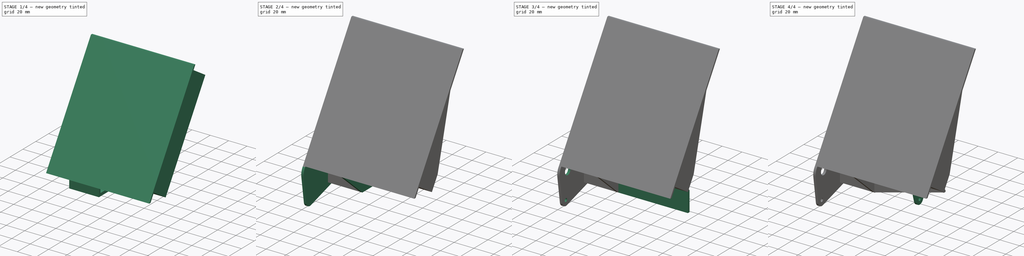
[diagram: build sequence overview — one tinted view per stage of 4, left to right]
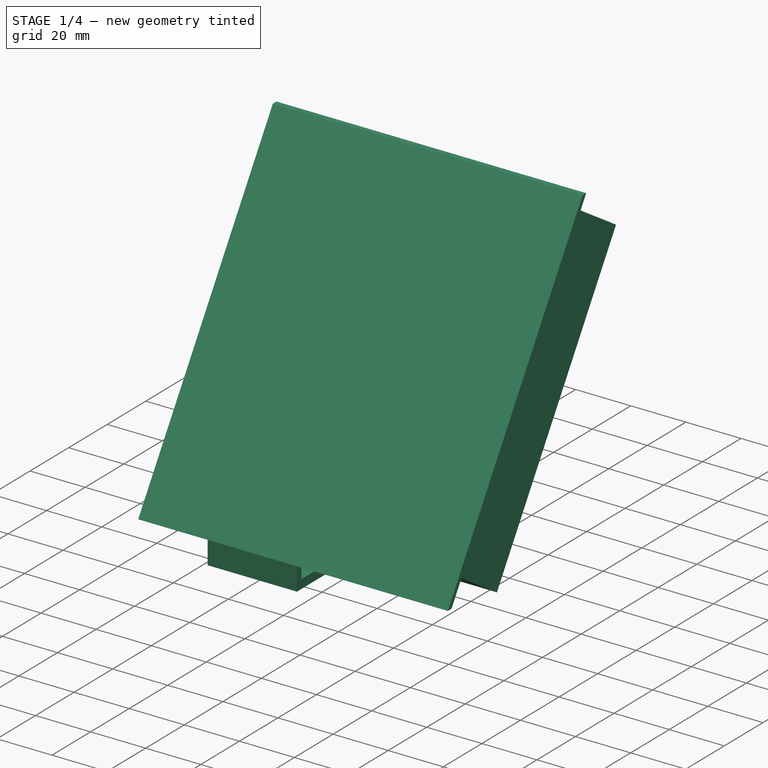
[diagram: stage 1 of 4 — iso view after this stage's code; geometry added in this stage tinted green]
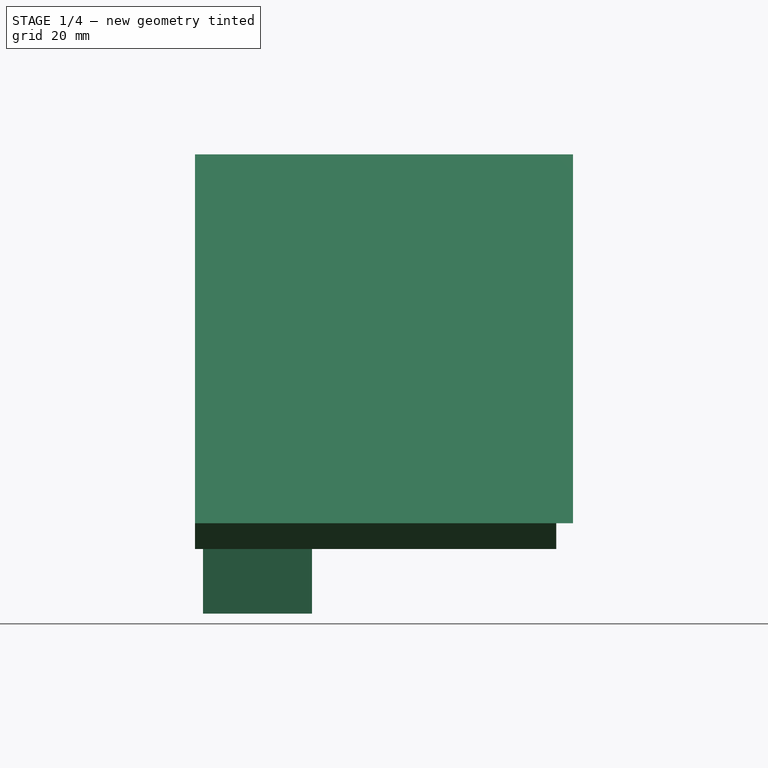
[diagram: stage 1 of 4 — front view after this stage's code; geometry added in this stage tinted green]
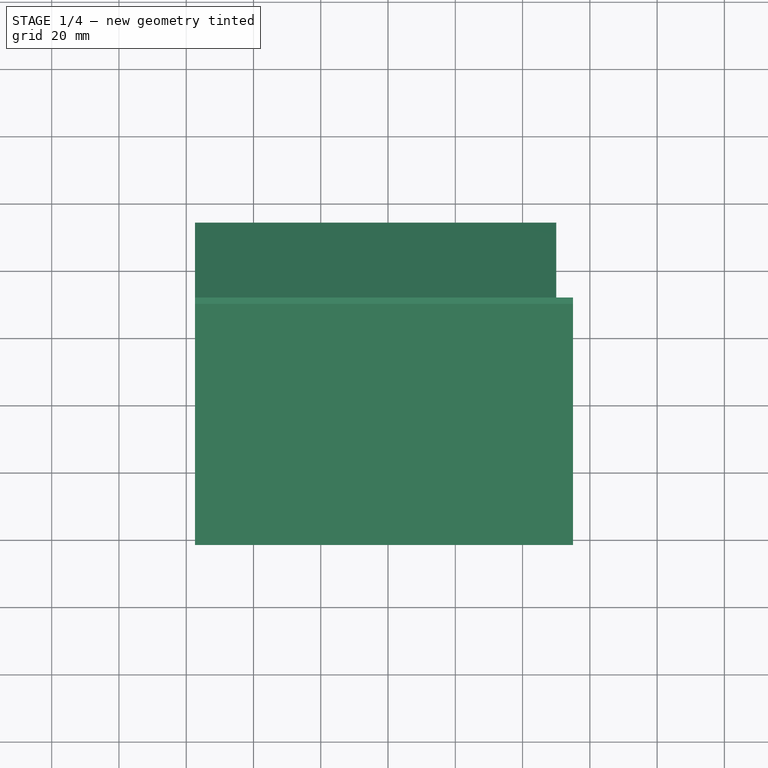
[diagram: stage 1 of 4 — top view after this stage's code; geometry added in this stage tinted green]
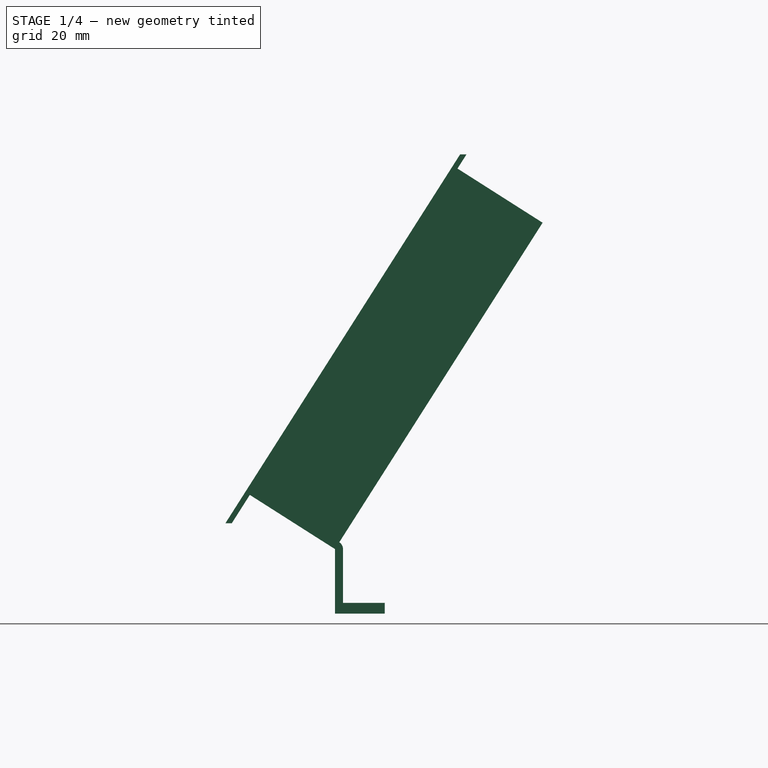
[diagram: stage 1 of 4 — right view after this stage's code; geometry added in this stage tinted green]
FCSTD DOCUMENT  (FreeCAD 0.19R24291 (Git))
Label: Hopper7
License: All rights reserved
LicenseURL: http://en.wikipedia.org/wiki/All_rights_reserved
objects: Sketcher::SketchObject×11, PartDesign::Pad×7, PartDesign::Pocket×4, Spreadsheet::Sheet×1, PartDesign::Plane×1, PartDesign::Body×1
note: 35 computed .brp shape members not serialized (recipe doc carries the construction recipe); baked Part::Feature solids carry a one-line shape summary decoded from their .brp

FEATURE [Sketcher::SketchObject] Sketch
  AttachmentOffset = pos=(0,0,0) rot=(1,0,0;1.00409rad)
  FullyConstrained = true
  MapMode = 5
  Placement = pos=(0,0,0) rot=(1,0,0;1.00409rad)
  Support = -> [XY_Plane]
  expr: Constraints[6] = Spreadsheet.length
  expr: Constraints[13] = Spreadsheet.width / 2 + Spreadsheet.stiffening_rib_width
  expr: Constraints[7] = Spreadsheet.width / 2
  expr: .AttachmentOffset.Rotation.Angle = 90 - Spreadsheet.inclination
  sketch-geometry (5):
    g0: LineSegment StartX=0 StartY=0 StartZ=0 EndX=55 EndY=0 EndZ=0
    g1: LineSegment StartX=55 StartY=0 StartZ=0 EndX=55 EndY=130 EndZ=0
    g2: LineSegment StartX=55 StartY=130 StartZ=0 EndX=-57.4 EndY=130 EndZ=0
    g3: LineSegment StartX=0 StartY=0 StartZ=0 EndX=-57.4 EndY=0 EndZ=0
    g4: LineSegment StartX=-57.4 StartY=0 StartZ=0 EndX=-57.4 EndY=130 EndZ=0
  constraints (14):
    c: Coincident(g0,g1)
    c: Coincident(g1,g2)
    c: Horizontal(g0)
    c: Horizontal(g2)
    c: Vertical(g1)
    c: Coincident(g0,g-1)
    c: Distance(g1) = 130
    c: Distance(g0) = 55
    c: Coincident(g3,g0)
    c: PointOnObject(g3,g-1)
    c: Coincident(g4,g3)
    c: Coincident(g4,g2)
    c: Vertical(g4)
    c: Distance(g3) = 57.4
FEATURE [Spreadsheet::Sheet] Spreadsheet
  cells = B2(inclination)=32.47; D2(stiffening_rib_max_length)=30; F2(fulcrum_x_offset)=; H2(fastener_platform_width)==15 + 6.4 + 5.5 * 2; B3(width)=110; F3(fulcrum_y_offset)=; B4(length)=130; B5(stiffening_rib_width)=2.4
FEATURE [PartDesign::Pad] Pad  label="Основа"
  Direction = (0,-1,0)
  Length = 1.6
  Length2 = 100
  Profile = -> Sketch
  Type = 0
  UseCustomVector = true
FEATURE [PartDesign::Plane] DatumPlane
  AttachmentOffset = pos=(0,0,0) rot=(1,0,0;1.00409rad)
  Length = 61.7496
  MapMode = 2
  Placement = pos=(0,0,0) rot=(1,0,0;1.00409rad)
  ResizeMode = 0
  Support = -> [X_Axis]
  Width = 80.7761
  expr: .AttachmentOffset.Rotation.Roll = 90 - Spreadsheet.inclination
FEATURE [Sketcher::SketchObject] Sketch001
  FullyConstrained = false
  MapMode = 5
  Placement = pos=(0,0,0) rot=(0,0.876601,0.481218;3.14159rad)
  Support = -> [DatumPlane]
  expr: Constraints[47] = Spreadsheet.fastener_platform_width
  expr: Constraints[46] = Spreadsheet.width / 2 + Spreadsheet.stiffening_rib_width
  expr: Constraints[45] = Spreadsheet.length - 5
  expr: Constraints[44] = Spreadsheet.width / 2 - 5
  expr: Constraints[41] = Spreadsheet.stiffening_rib_width
  sketch-geometry (17):
    g0: LineSegment StartX=57.4 StartY=10 StartZ=0 EndX=-50 EndY=10 EndZ=0
    g1: LineSegment StartX=-47.6 StartY=12.4 StartZ=0 EndX=19.4439 EndY=12.4 EndZ=0
    g2: LineSegment StartX=-47.6 StartY=12.4 StartZ=0 EndX=-47.6 EndY=90.9044 EndZ=0
    g3: LineSegment StartX=-50 StartY=125 StartZ=0 EndX=-50 EndY=10 EndZ=0
    g4: LineSegment StartX=-50 StartY=125 StartZ=0 EndX=57.4 EndY=125 EndZ=0
    g5: LineSegment StartX=55 StartY=122.6 StartZ=0 EndX=-47.6 EndY=122.6 EndZ=0
    g6: LineSegment StartX=55 StartY=122.6 StartZ=0 EndX=55 EndY=12.4 EndZ=0
    g7: LineSegment StartX=57.4 StartY=10 StartZ=0 EndX=57.4 EndY=125 EndZ=0
    g8: LineSegment StartX=19.4439 StartY=12.4 StartZ=0 EndX=-47.6 EndY=90.9044 EndZ=0
    g9: LineSegment StartX=22.6 StartY=12.4 StartZ=0 EndX=-47.6 EndY=94.6 EndZ=0
    g10: LineSegment StartX=22.6 StartY=12.4 StartZ=0 EndX=55 EndY=12.4 EndZ=0
    g11: LineSegment StartX=-47.6 StartY=94.6 StartZ=0 EndX=-47.6 EndY=122.6 EndZ=0
    g12: LineSegment StartX=8.67844 StartY=12.4 StartZ=0 EndX=8.67844 EndY=10 EndZ=0
    g13: LineSegment StartX=-47.6 StartY=53.1117 StartZ=0 EndX=-50 EndY=53.1117 EndZ=0
    g14: LineSegment StartX=55 StartY=42.5219 StartZ=0 EndX=57.4 EndY=42.5219 EndZ=0
    g15: LineSegment StartX=3.18141 StartY=122.6 StartZ=0 EndX=3.18141 EndY=125 EndZ=0
    g16: LineSegment StartX=-17.7711 StartY=55.9765 StartZ=0 EndX=-15.9461 EndY=57.5351 EndZ=0
  constraints (49):
    c: Horizontal(g0)
    c: Horizontal(g1)
    c: Vertical(g2)
    c: Vertical(g3)
    c: Horizontal(g4)
    c: Horizontal(g5)
    c: Vertical(g6)
    c: Vertical(g7)
    c: Coincident(g1,g2)
    c: Coincident(g10,g6)
    c: Coincident(g5,g6)
    c: Coincident(g0,g7)
    c: Coincident(g7,g4)
    c: Coincident(g11,g5)
    c: Coincident(g4,g3)
    c: Coincident(g3,g0)
    c: Coincident(g1,g8)
    c: Coincident(g10,g9)
    c: Tangent(g1,g10)
    c: Coincident(g2,g8)
    c: Coincident(g11,g9)
    c: Tangent(g2,g11)
    c: Parallel(g8,g9)
    c: PointOnObject(g12,g1)
    c: PointOnObject(g12,g0)
    c: Vertical(g12)
    c: PointOnObject(g13,g2)
    c: PointOnObject(g13,g3)
    c: Horizontal(g13)
    c: PointOnObject(g14,g6)
    c: PointOnObject(g14,g7)
    c: Horizontal(g14)
    c: PointOnObject(g15,g5)
    c: PointOnObject(g15,g4)
    c: Vertical(g15)
    c: PointOnObject(g16,g8)
    c: PointOnObject(g16,g9)
    c: Perpendicular(g9,g16)
    c: Equal(g12,g13)
    c: Equal(g13,g15)
    c: Equal(g15,g14)
    c: Distance(g16) = 2.4
    c: Equal(g16,g12)
    c: Distance(g-1,g0) = 10
    c: Distance(g0,g-2) = 50
    c: Distance(g-1,g4) = 125
    c: Distance(g0,g-2) = 57.4
    c: Distance(g10) = 32.4
    c: Distance(g11) = 28
FEATURE [PartDesign::Pad] Pad001  label="Усилители"
  BaseFeature = -> Pad
  Direction = (1,1,1)
  Length = 30
  Length2 = 100
  Profile = -> Sketch001
  Type = 0
  expr: Length = Spreadsheet.stiffening_rib_max_length
FEATURE [Sketcher::SketchObject] Sketch002
  AttachmentOffset = pos=(0,0,55) rot=(0,0,1;0.566708rad)
  FullyConstrained = true
  MapMode = 5
  Placement = pos=(-55,1.22e-14,-1.22e-14) rot=(-0.433623,0.7899,0.433623;4.4787rad)
  Support = -> [YZ_Plane]
  expr: Constraints[11] = 90 - Spreadsheet.inclination
  expr: .AttachmentOffset.Base.z = Spreadsheet.width / 2
  expr: .AttachmentOffset.Rotation.Angle = Spreadsheet.inclination
  sketch-geometry (10):
    g0: Circle CenterX=-10.084 CenterY=-2.2411 CenterZ=0 NormalX=0 NormalY=0 NormalZ=1 AngleXU=0 Radius=4
    g1: LineSegment StartX=0 StartY=0 StartZ=0 EndX=-6.16253 EndY=3.92143 EndZ=0
    g2: LineSegment StartX=-6.16253 StartY=3.92143 StartZ=0 EndX=-10.084 EndY=-2.2411 EndZ=0
    g3: LineSegment StartX=0 StartY=0 StartZ=0 EndX=-3.92143 EndY=-6.16253 EndZ=0
    g4: LineSegment StartX=-3.92143 StartY=-6.16253 StartZ=0 EndX=-10.084 EndY=-2.2411 EndZ=0
    g5: LineSegment StartX=-10.084 StartY=-2.2411 StartZ=0 EndX=-21.684 EndY=-2.2411 EndZ=0
    g6: LineSegment StartX=-21.684 StartY=-25.4411 StartZ=0 EndX=-21.684 EndY=-2.2411 EndZ=0
    g7: LineSegment StartX=-21.684 StartY=-2.2411 StartZ=0 EndX=-21.684 EndY=20.9589 EndZ=0
    g8: Circle CenterX=-21.684 CenterY=20.9589 CenterZ=0 NormalX=0 NormalY=0 NormalZ=1 AngleXU=0 Radius=1.7
    g9: Circle CenterX=-21.684 CenterY=-25.4411 CenterZ=0 NormalX=0 NormalY=0 NormalZ=1 AngleXU=0 Radius=1.7
  constraints (26):
    c: Distance(g0,g-1) = 10.33
    c: Coincident(g1,g-1)
    c: Coincident(g2,g1)
    c: Coincident(g2,g0)
    c: Coincident(g3,g-1)
    c: Coincident(g4,g3)
    c: Coincident(g4,g0)
    c: Perpendicular(g1,g3)
    c: Perpendicular(g2,g1)
    c: Perpendicular(g2,g4)
    c: Equal(g4,g3)
    c: Angle(g-2,g1) = 1.00409
    c: Diameter(g0) = 8
    c: Coincident(g5,g0)
    c: Coincident(g6,g5)
    c: Coincident(g7,g5)
    c: Perpendicular(g6,g5)
    c: Perpendicular(g7,g5)
    c: Equal(g6,g7)
    c: Distance(g5) = 11.6
    c: Distance(g6,g7) = 46.4
    c: Coincident(g8,g7)
    c: Coincident(g9,g6)
    c: Equal(g9,g8)
    c: Diameter(g9) = 3.4
    c: Horizontal(g5)
FEATURE [Sketcher::SketchObject] Sketch003
  AttachmentOffset = pos=(0,0,-55) rot=(0,0,1;0rad)
  FullyConstrained = true
  MapMode = 5
  Placement = pos=(-55,1.22e-14,-1.22e-14) rot=(0.57735,0.57735,0.57735;2.0944rad)
  Support = -> [YZ_Plane]
  expr: .AttachmentOffset.Base.z = -Spreadsheet.width / 2
  expr: Constraints[13] = Spreadsheet.stiffening_rib_width
  expr: Constraints[5] = Spreadsheet.stiffening_rib_max_length
  expr: Constraints[3] = Spreadsheet.inclination
  sketch-geometry (9):
    g0: LineSegment StartX=0 StartY=0 StartZ=0 EndX=5.36858 EndY=8.43673 EndZ=0
    g1: LineSegment StartX=5.36858 StartY=8.43673 StartZ=0 EndX=30.6788 EndY=-7.66901 EndZ=0
    g2: LineSegment StartX=30.6788 StartY=-7.66901 StartZ=0 EndX=31.9672 EndY=-5.6442 EndZ=0
    g3: ArcOfCircle CenterX=30.6788 CenterY=-7.66901 CenterZ=0 NormalX=0 NormalY=0 NormalZ=1 AngleXU=0 Radius=2.4 StartAngle=6.28318 EndAngle=7.28727
    g4: LineSegment StartX=33.0788 StartY=-7.66902 StartZ=0 EndX=33.0788 EndY=-23.669 EndZ=0
    g5: LineSegment StartX=30.6788 StartY=-7.66901 StartZ=0 EndX=30.6788 EndY=-26.869 EndZ=0
    g6: LineSegment StartX=30.6788 StartY=-26.869 StartZ=0 EndX=45.4788 EndY=-26.869 EndZ=0
    g7: LineSegment StartX=45.4788 StartY=-26.869 StartZ=0 EndX=45.4788 EndY=-23.669 EndZ=0
    g8: LineSegment StartX=33.0788 StartY=-23.669 StartZ=0 EndX=45.4788 EndY=-23.669 EndZ=0
  constraints (26):
    c: Coincident(g0,g-1)
    c: Distance(g0) = 10
    c: Coincident(g1,g0)
    c: Angle(g0,g-2) = 0.566708
    c: Perpendicular(g0,g1)
    c: Distance(g1) = 30
    c: Coincident(g2,g1)
    c: Coincident(g3,g2)
    c: Coincident(g3,g2)
    c: Coincident(g4,g3)
    c: Vertical(g4)
    c: Tangent(g3,g4)
    c: Perpendicular(g1,g2)
    c: Distance(g2) = 2.4
    c: Coincident(g5,g2)
    c: Vertical(g5)
    c: Coincident(g6,g5)
    c: Horizontal(g6)
    c: Coincident(g7,g6)
    c: Vertical(g7)
    c: Coincident(g8,g4)
    c: Coincident(g8,g7)
    c: Horizontal(g8)
    c: Distance(g7) = 3.2
    c: Distance(g4) = 16
    c: Distance(g8) = 12.4
FEATURE [PartDesign::Pad] Pad002  label="Платформа"
  BaseFeature = -> Pad001
  Direction = (1,1,1)
  Length = 32.4
  Length2 = 100
  Profile = -> Sketch003
  Type = 0
  expr: Length = Spreadsheet.fastener_platform_width
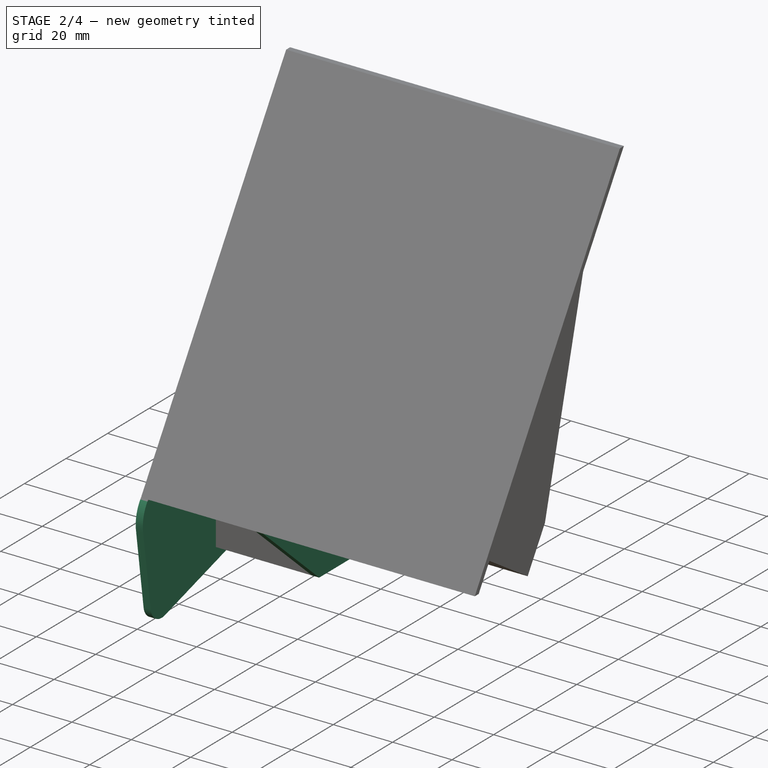
[diagram: stage 2 of 4 — iso view after this stage's code; geometry added in this stage tinted green]
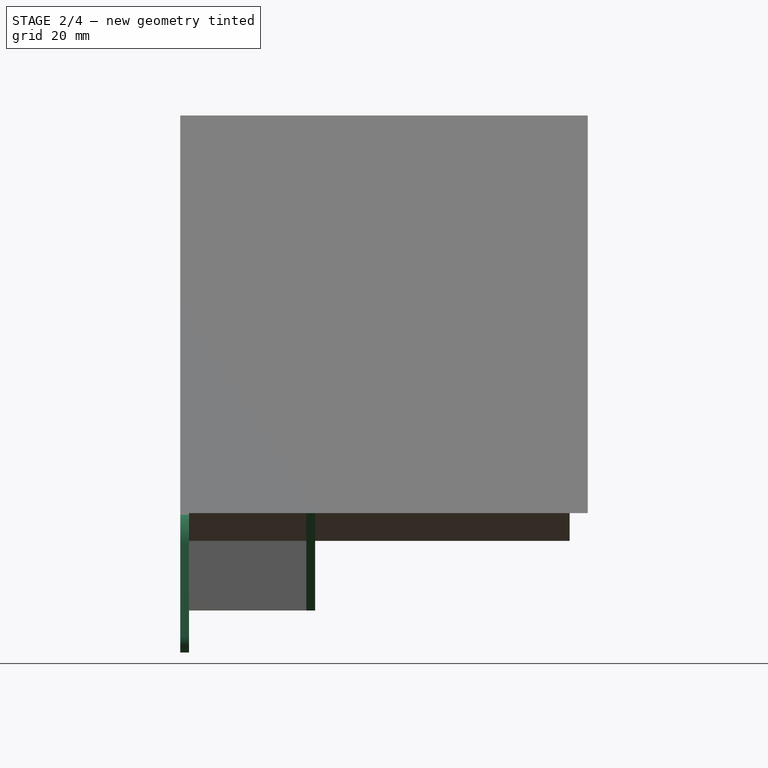
[diagram: stage 2 of 4 — front view after this stage's code; geometry added in this stage tinted green]
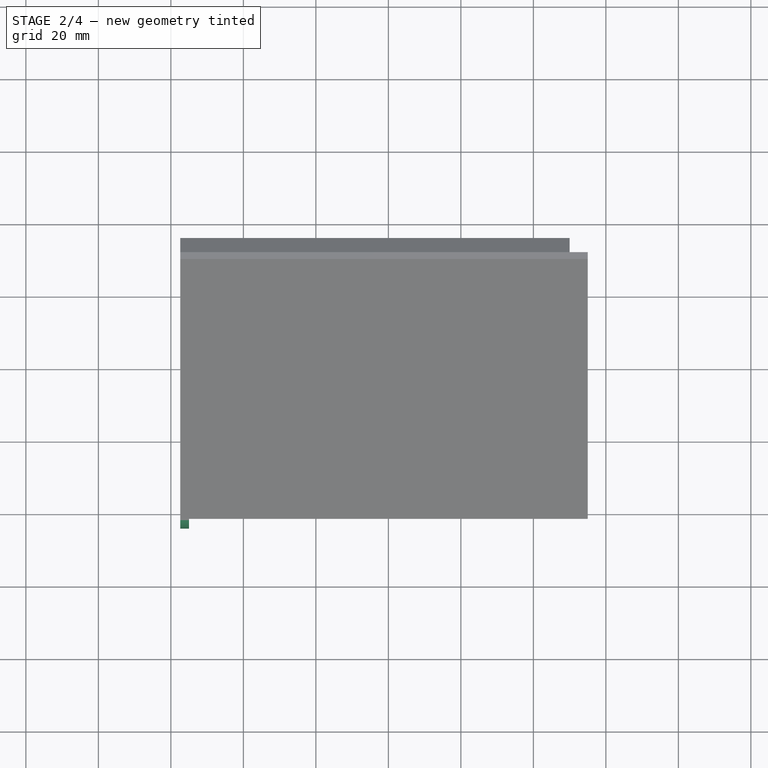
[diagram: stage 2 of 4 — top view after this stage's code; geometry added in this stage tinted green]
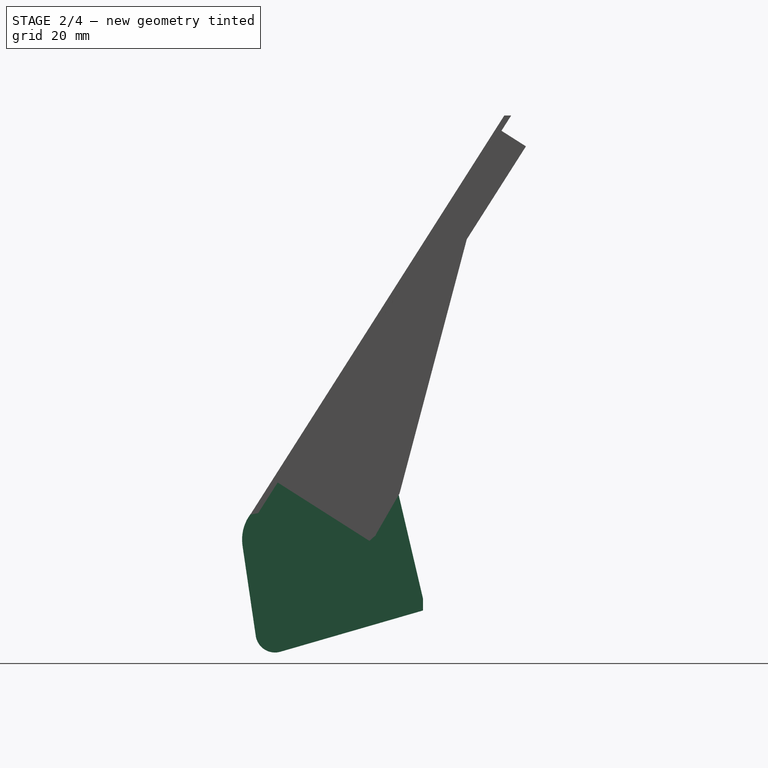
[diagram: stage 2 of 4 — right view after this stage's code; geometry added in this stage tinted green]
FEATURE [Sketcher::SketchObject] Sketch004
  AttachmentOffset = pos=(0,0,-22.6) rot=(0,0,1;0rad)
  FullyConstrained = true
  MapMode = 5
  Placement = pos=(-22.6,5e-15,-5e-15) rot=(0.57735,0.57735,0.57735;2.0944rad)
  Support = -> [YZ_Plane]
  expr: Constraints[25] = Sketch003.Constraints[25]
  expr: Constraints[24] = Sketch003.Constraints[24]
  expr: Constraints[23] = Sketch003.Constraints[23]
  expr: .AttachmentOffset.Base.z = -Spreadsheet.width / 2 + Spreadsheet.fastener_platform_width
  expr: Constraints[13] = Sketch003.Constraints[13]
  expr: Constraints[5] = Sketch003.Constraints[5]
  expr: Constraints[3] = Sketch003.Constraints[3]
  expr: Constraints[1] = Sketch003.Constraints[1]
  sketch-geometry (14):
    g0: LineSegment StartX=0 StartY=0 StartZ=0 EndX=5.36858 EndY=8.43673 EndZ=0
    g1: LineSegment StartX=5.36858 StartY=8.43673 StartZ=0 EndX=30.6788 EndY=-7.66901 EndZ=0
    g2: LineSegment StartX=30.6788 StartY=-7.66901 StartZ=0 EndX=31.9672 EndY=-5.6442 EndZ=0
    g3: ArcOfCircle CenterX=30.6788 CenterY=-7.66901 CenterZ=0 NormalX=0 NormalY=0 NormalZ=1 AngleXU=0 Radius=2.4 StartAngle=9.56287e-08 EndAngle=1.00409
    g4: LineSegment StartX=33.0788 StartY=-7.66901 StartZ=0 EndX=33.0788 EndY=-23.669 EndZ=0
    g5: LineSegment StartX=30.6788 StartY=-7.66901 StartZ=0 EndX=30.6788 EndY=-26.869 EndZ=0
    g6: LineSegment StartX=30.6788 StartY=-26.869 StartZ=0 EndX=45.4788 EndY=-26.869 EndZ=0
    g7: LineSegment StartX=45.4788 StartY=-26.869 StartZ=0 EndX=45.4788 EndY=-23.669 EndZ=0
    g8: LineSegment StartX=33.0788 StartY=-23.669 StartZ=0 EndX=45.4788 EndY=-23.669 EndZ=0
    g9: LineSegment StartX=45.4788 StartY=-23.669 StartZ=0 EndX=45.4788 EndY=-26.869 EndZ=0
    g10: LineSegment StartX=45.4788 StartY=-23.669 StartZ=0 EndX=32.6093 EndY=-6.24324 EndZ=0
    g11: LineSegment StartX=45.4788 StartY=-26.869 StartZ=0 EndX=30.6788 EndY=-26.869 EndZ=0
    g12: LineSegment StartX=30.6788 StartY=-26.869 StartZ=0 EndX=0 EndY=-7.1e-15 EndZ=0
    g13: ArcOfCircle CenterX=30.6788 CenterY=-7.66901 CenterZ=0 NormalX=0 NormalY=0 NormalZ=1 AngleXU=0 Radius=2.4 StartAngle=0.636112 EndAngle=1.00409
  constraints (37):
    c: Coincident(g0,g-1)
    c: Distance(g0) = 10
    c: Coincident(g1,g0)
    c: Angle(g0,g-2) = 0.566708
    c: Perpendicular(g0,g1)
    c: Distance(g1) = 30
    c: Coincident(g2,g1)
    c: Coincident(g3,g2)
    c: Coincident(g3,g2)
    c: Coincident(g4,g3)
    c: Vertical(g4)
    c: Tangent(g3,g4)
    c: Perpendicular(g1,g2)
    c: Distance(g2) = 2.4
    c: Coincident(g5,g2)
    c: Vertical(g5)
    c: Coincident(g6,g5)
    c: Horizontal(g6)
    c: Coincident(g7,g6)
    c: Vertical(g7)
    c: Coincident(g8,g4)
    c: Coincident(g8,g7)
    c: Horizontal(g8)
    c: Distance(g7) = 3.2
    c: Distance(g4) = 16
    c: Distance(g8) = 12.4
    c: Coincident(g9,g7)
    c: Coincident(g9,g6)
    c: Coincident(g10,g9)
    c: Coincident(g11,g9)
    c: Coincident(g11,g5)
    c: Coincident(g12,g11)
    c: Coincident(g12,g-1)
    c: Coincident(g13,g1)
    c: Coincident(g13,g2)
    c: Coincident(g13,g10)
    c: Tangent(g13,g10)
FEATURE [PartDesign::Pad] Pad003  label="Усилитель платформы"
  BaseFeature = -> Pad002
  Direction = (1,1,1)
  Length = 2.4
  Length2 = 100
  Profile = -> Sketch004
  Type = 0
  expr: Length = Spreadsheet.stiffening_rib_width
FEATURE [Sketcher::SketchObject] Sketch005
  AttachmentOffset = pos=(0,0,-55) rot=(0,0,1;0rad)
  FullyConstrained = false
  MapMode = 5
  Placement = pos=(-55,1.22e-14,-1.22e-14) rot=(0.57735,0.57735,0.57735;2.0944rad)
  Support = -> [YZ_Plane]
  expr: Constraints[77] = Spreadsheet.inclination
  expr: Constraints[75] = Sketch002.Constraints[24]
  expr: Constraints[70] = Sketch002.Constraints[19]
  expr: Constraints[27] = Sketch003.Constraints[1]
  expr: Constraints[49] = Sketch003.Constraints[23]
  expr: Constraints[63] = Sketch002.Constraints[12]
  expr: Constraints[71] = Sketch002.Constraints[20]
  expr: Constraints[87] = 180 - Spreadsheet.inclination
  expr: Constraints[52] = Sketch002.Constraints[0]
  expr: Constraints[50] = Sketch003.Constraints[24]
  expr: Constraints[39] = Sketch003.Constraints[13]
  expr: Constraints[51] = Sketch003.Constraints[25]
  expr: Constraints[31] = Sketch003.Constraints[5]
  expr: Constraints[25] = Sketch003.Constraints[25]
  expr: Constraints[24] = Sketch003.Constraints[24]
  expr: Constraints[23] = Sketch003.Constraints[23]
  expr: .AttachmentOffset.Base.z = -Spreadsheet.width / 2
  expr: Constraints[13] = Sketch003.Constraints[13]
  expr: Constraints[3] = Sketch003.Constraints[3]
  expr: Constraints[5] = Sketch003.Constraints[5]
  expr: Constraints[29] = Sketch003.Constraints[3]
  expr: Constraints[1] = Sketch003.Constraints[1]
  sketch-geometry (37):
    g0: LineSegment StartX=0 StartY=0 StartZ=0 EndX=5.36858 EndY=8.43673 EndZ=0
    g1: LineSegment StartX=5.36858 StartY=8.43673 StartZ=0 EndX=30.6788 EndY=-7.66901 EndZ=0
    g2: LineSegment StartX=30.6788 StartY=-7.66901 StartZ=0 EndX=31.9672 EndY=-5.6442 EndZ=0
    g3: ArcOfCircle CenterX=30.6788 CenterY=-7.66901 CenterZ=0 NormalX=0 NormalY=0 NormalZ=1 AngleXU=0 Radius=2.4 StartAngle=2.97715e-08 EndAngle=1.00409
    g4: LineSegment StartX=33.0788 StartY=-7.66901 StartZ=0 EndX=33.0788 EndY=-23.669 EndZ=0
    g5: LineSegment StartX=30.6788 StartY=-7.66901 StartZ=0 EndX=30.6788 EndY=-26.869 EndZ=0
    g6: LineSegment StartX=30.6788 StartY=-26.869 StartZ=0 EndX=45.4788 EndY=-26.869 EndZ=0
    g7: LineSegment StartX=45.4788 StartY=-26.869 StartZ=0 EndX=45.4788 EndY=-23.669 EndZ=0
    g8: LineSegment StartX=33.0788 StartY=-23.669 StartZ=0 EndX=45.4788 EndY=-23.669 EndZ=0
    g9: LineSegment StartX=0 StartY=0 StartZ=0 EndX=5.36858 EndY=8.43673 EndZ=0
    g10: LineSegment StartX=5.36858 StartY=8.43673 StartZ=0 EndX=30.6788 EndY=-7.66901 EndZ=0
    g11: LineSegment StartX=30.6788 StartY=-7.66901 StartZ=0 EndX=31.9672 EndY=-5.6442 EndZ=0
    g12: ArcOfCircle CenterX=30.6788 CenterY=-7.66901 CenterZ=0 NormalX=0 NormalY=0 NormalZ=1 AngleXU=0 Radius=2.4 StartAngle=6.28318 EndAngle=7.28727
    g13: LineSegment StartX=33.0788 StartY=-7.66902 StartZ=0 EndX=33.0788 EndY=-23.669 EndZ=0
    g14: LineSegment StartX=30.6788 StartY=-7.66901 StartZ=0 EndX=30.6788 EndY=-26.869 EndZ=0
    g15: LineSegment StartX=30.6788 StartY=-26.869 StartZ=0 EndX=45.4788 EndY=-26.869 EndZ=0
    g16: LineSegment StartX=45.4788 StartY=-26.869 StartZ=0 EndX=45.4788 EndY=-23.669 EndZ=0
    g17: LineSegment StartX=33.0788 StartY=-23.669 StartZ=0 EndX=45.4788 EndY=-23.669 EndZ=0
    g18: Circle CenterX=7.30441 CenterY=-7.30441 CenterZ=0 NormalX=0 NormalY=0 NormalZ=1 AngleXU=0 Radius=4
    g19: LineSegment StartX=0 StartY=0 StartZ=0 EndX=0 EndY=-7.30441 EndZ=0
    g20: LineSegment StartX=0 StartY=-7.30441 StartZ=0 EndX=7.30441 EndY=-7.30441 EndZ=0
    g21: LineSegment StartX=0 StartY=0 StartZ=0 EndX=7.30441 EndY=0 EndZ=0
    g22: LineSegment StartX=7.30441 StartY=0 StartZ=0 EndX=7.30441 EndY=-7.30441 EndZ=0
    g23: LineSegment StartX=7.30441 StartY=-7.30441 StartZ=0 EndX=17.091 EndY=-13.532 EndZ=0
    g24: LineSegment StartX=29.5461 StartY=6.04124 StartZ=0 EndX=17.091 EndY=-13.532 EndZ=0
    g25: LineSegment StartX=17.091 StartY=-13.532 StartZ=0 EndX=4.63591 EndY=-33.1052 EndZ=0
    g26: Circle CenterX=4.63591 CenterY=-33.1052 CenterZ=0 NormalX=0 NormalY=0 NormalZ=1 AngleXU=0 Radius=1.7
    g27: Circle CenterX=29.5461 CenterY=6.04124 CenterZ=0 NormalX=0 NormalY=0 NormalZ=1 AngleXU=0 Radius=1.7
    g28: LineSegment StartX=45.4788 StartY=-26.869 StartZ=0 EndX=6.12582 EndY=-38.2548 EndZ=0
    g29: LineSegment StartX=45.4788 StartY=-23.669 StartZ=0 EndX=38.0462 EndY=8.03403 EndZ=0
    g30: ArcOfCircle CenterX=4.63591 CenterY=-33.1052 CenterZ=0 NormalX=0 NormalY=0 NormalZ=1 AngleXU=0 Radius=5.3608 StartAngle=3.28732 EndAngle=4.99402
    g31: ArcOfCircle CenterX=29.5461 CenterY=6.04124 CenterZ=0 NormalX=0 NormalY=0 NormalZ=1 AngleXU=0 Radius=8.73052 StartAngle=0.230285 EndAngle=1.00409
    g32: LineSegment StartX=0 StartY=0 StartZ=0 EndX=-1.34988 EndY=0.858973 EndZ=0
    g33: LineSegment StartX=-1.89647 StartY=0 StartZ=0 EndX=14.5891 EndY=25.9071 EndZ=0
    g34: LineSegment StartX=14.5891 StartY=25.9071 StartZ=0 EndX=34.2332 EndY=13.4069 EndZ=0
    g35: ArcOfCircle CenterX=7.30441 CenterY=-7.30441 CenterZ=0 NormalX=0 NormalY=0 NormalZ=1 AngleXU=0 Radius=11.7478 StartAngle=2.47059 EndAngle=3.28733
    g36: LineSegment StartX=-0.668068 StartY=-33.8836 StartZ=0 EndX=-4.31885 EndY=-9.01042 EndZ=0
  constraints (102):
    c: Coincident(g0,g-1)
    c: Distance(g0) = 10
    c: Coincident(g1,g0)
    c: Angle(g0,g-2) = 0.566708
    c: Perpendicular(g0,g1)
    c: Distance(g1) = 30
    c: Coincident(g2,g1)
    c: Coincident(g3,g2)
    c: Coincident(g3,g2)
    c: Coincident(g4,g3)
    c: Vertical(g4)
    c: Tangent(g3,g4)
    c: Perpendicular(g1,g2)
    c: Distance(g2) = 2.4
    c: Coincident(g5,g2)
    c: Vertical(g5)
    c: Coincident(g6,g5)
    c: Horizontal(g6)
    c: Coincident(g7,g6)
    c: Vertical(g7)
    c: Coincident(g8,g4)
    c: Coincident(g8,g7)
    c: Horizontal(g8)
    c: Distance(g7) = 3.2
    c: Distance(g4) = 16
    c: Distance(g8) = 12.4
    c: Coincident(g9,g-1)
    c: Distance(g9) = 10
    c: Coincident(g10,g9)
    c: Angle(g9,g-2) = 0.566708
    c: Perpendicular(g9,g10)
    c: Distance(g10) = 30
    c: Coincident(g11,g10)
    c: Coincident(g12,g11)
    c: Coincident(g12,g11)
    c: Coincident(g13,g12)
    c: Vertical(g13)
    c: Tangent(g12,g13)
    c: Perpendicular(g10,g11)
    c: Distance(g11) = 2.4
    c: Coincident(g14,g11)
    c: Vertical(g14)
    c: Coincident(g15,g14)
    c: Horizontal(g15)
    c: Coincident(g16,g15)
    c: Vertical(g16)
    c: Coincident(g17,g13)
    c: Coincident(g17,g16)
    c: Horizontal(g17)
    c: Distance(g16) = 3.2
    c: Distance(g13) = 16
    c: Distance(g17) = 12.4
    c: Distance(g18,g-1) = 10.33
    c: Coincident(g19,g-1)
    c: Coincident(g20,g19)
    c: Coincident(g20,g18)
    c: Coincident(g21,g-1)
    c: Coincident(g22,g21)
    c: Coincident(g22,g18)
    c: Perpendicular(g19,g21)
    c: Perpendicular(g20,g19)
    c: Perpendicular(g20,g22)
    c: Equal(g22,g21)
    c: Diameter(g18) = 8
    c: Coincident(g23,g18)
    c: Coincident(g24,g23)
    c: Coincident(g25,g23)
    c: Perpendicular(g24,g23)
    c: Perpendicular(g25,g23)
    c: Equal(g24,g25)
    c: Distance(g23) = 11.6
    c: Distance(g24,g25) = 46.4
    c: Coincident(g26,g25)
    c: Coincident(g27,g24)
    c: Equal(g27,g26)
    c: Diameter(g27) = 3.4
    c: Vertical(g22)
    c: Angle(g25,g-2) = 0.566708
    c: Coincident(g28,g7)
    c: Coincident(g29,g7)
    c: Coincident(g30,g25)
    c: Coincident(g30,g28)
    c: Tangent(g30,g28)
    c: Coincident(g31,g24)
    c: Coincident(g31,g29)
    c: Tangent(g31,g29)
    c: Coincident(g32,g-1)
    c: Angle(g-1,g32) = 2.57488
    c: Distance(g32) = 1.6
    c: PointOnObject(g33,g-1)
    c: Perpendicular(g33,g32)
    c: PointOnObject(g32,g33)
    c: Coincident(g34,g33)
    c: Coincident(g34,g31)
    c: Tangent(g34,g31)
    c: Perpendicular(g33,g34)
    c: Coincident(g35,g18)
    c: Coincident(g35,g33)
    c: Coincident(g36,g30)
    c: Coincident(g36,g35)
    c: Tangent(g35,g36)
    c: Tangent(g30,g36)
FEATURE [PartDesign::Pad] Pad004  label="Крепёж двигателя"
  BaseFeature = -> Pad003
  Direction = (1,1,1)
  Length = 2.4
  Length2 = 100
  Profile = -> Sketch005
  Reversed = true
  Type = 0
  expr: Length = Spreadsheet.stiffening_rib_width
FEATURE [Sketcher::SketchObject] Sketch006
  AttachmentOffset = pos=(0,0,0) rot=(0,0,1;-0.566708rad)
  FullyConstrained = false
  MapMode = 5
  Placement = pos=(0,0,0) rot=(-0.433623,-0.7899,-0.433623;4.4787rad)
  Support = -> [YZ_Plane]
  expr: Constraints[12] = Spreadsheet.length - 5
  expr: Constraints[11] = Spreadsheet.stiffening_rib_max_length
  expr: Constraints[2] = Spreadsheet.length - 5 - Spreadsheet.stiffening_rib_width - 28
  expr: .AttachmentOffset.Rotation.Angle = -Spreadsheet.inclination
  sketch-geometry (6):
    g0: LineSegment StartX=0 StartY=0 StartZ=0 EndX=0 EndY=94.6 EndZ=0
    g1: LineSegment StartX=0 StartY=94.6 StartZ=0 EndX=8 EndY=94.6 EndZ=0
    g2: LineSegment StartX=30 StartY=25.4809 StartZ=0 EndX=30 EndY=125 EndZ=0
    g3: LineSegment StartX=30 StartY=125 StartZ=0 EndX=8 EndY=125 EndZ=0
    g4: LineSegment StartX=8 StartY=125 StartZ=0 EndX=8 EndY=94.6 EndZ=0
    g5: LineSegment StartX=8 StartY=94.6 StartZ=0 EndX=30 EndY=25.4809 EndZ=0
  constraints (16):
    c: Coincident(g0,g-1)
    c: PointOnObject(g0,g-2)
    c: Distance(g0) = 94.6
    c: Coincident(g1,g0)
    c: Horizontal(g1)
    c: Distance(g1) = 8
    c: Coincident(g2,g3)
    c: Coincident(g3,g4)
    c: Horizontal(g3)
    c: Vertical(g2)
    c: Vertical(g4)
    c: Distance(g2,g-2) = 30
    c: Distance(g2,g-1) = 125
    c: Coincident(g5,g4)
    c: Coincident(g5,g2)
    c: Coincident(g4,g1)
FEATURE [PartDesign::Pocket] Pocket
  BaseFeature = -> Pad004
  Length = 5
  Length2 = 100
  Midplane = true
  Profile = -> Sketch006
  Type = 1
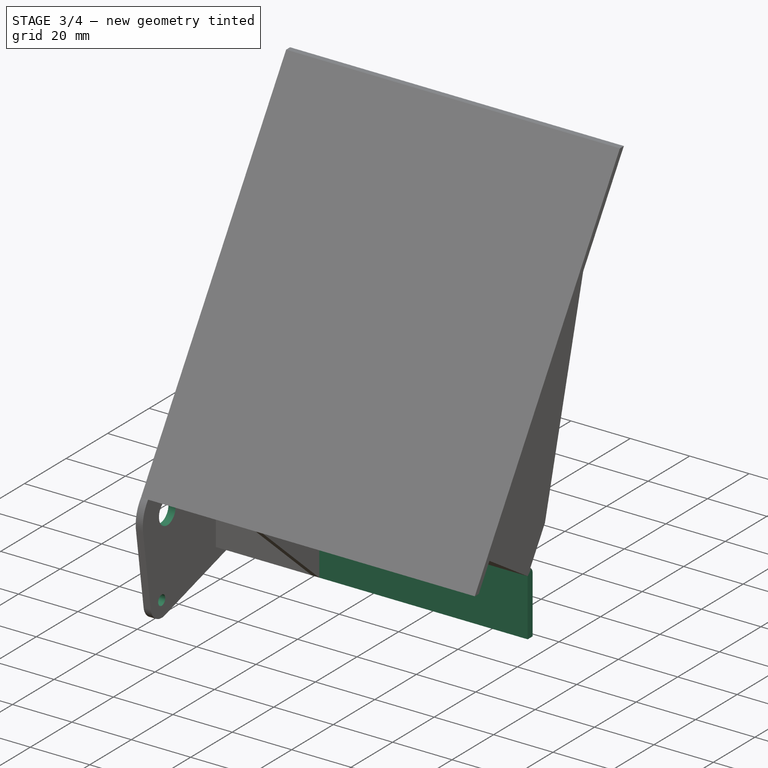
[diagram: stage 3 of 4 — iso view after this stage's code; geometry added in this stage tinted green]
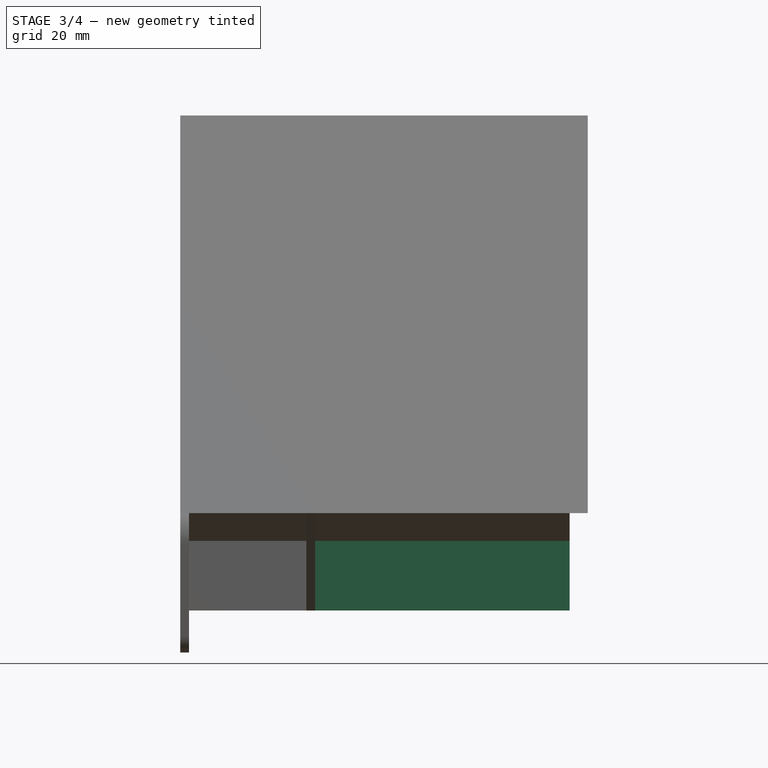
[diagram: stage 3 of 4 — front view after this stage's code; geometry added in this stage tinted green]
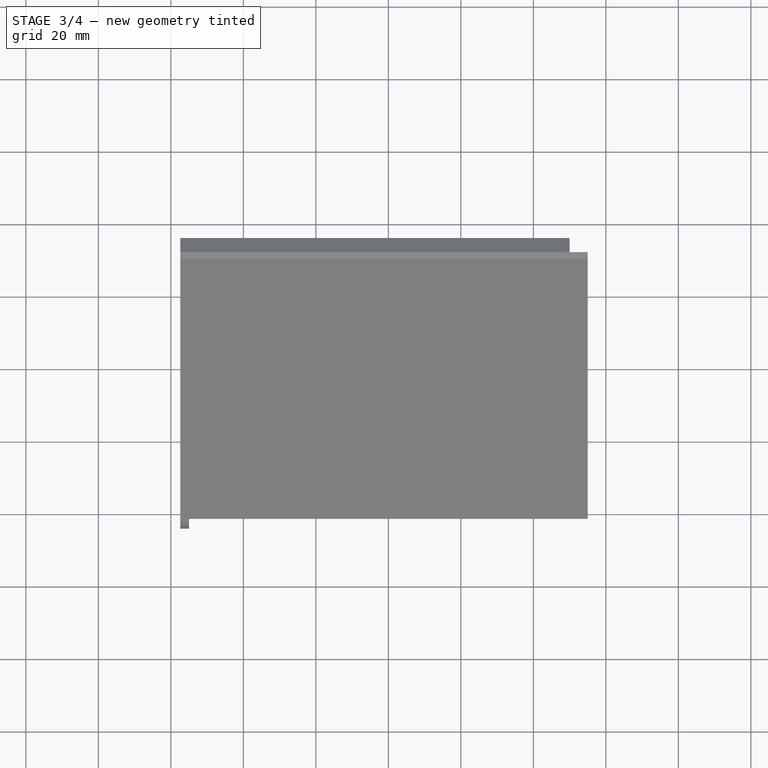
[diagram: stage 3 of 4 — top view after this stage's code; geometry added in this stage tinted green]
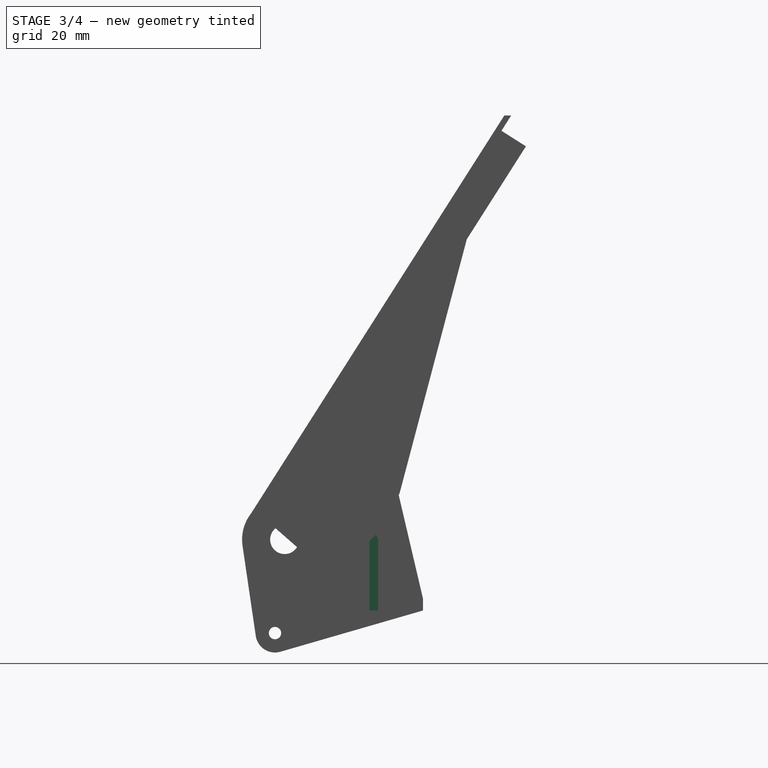
[diagram: stage 3 of 4 — right view after this stage's code; geometry added in this stage tinted green]
FEATURE [PartDesign::Pocket] Pocket001
  BaseFeature = -> Pocket
  Length = 5
  Length2 = 100
  Profile = -> Sketch002
  Reversed = true
  Type = 0
FEATURE [Sketcher::SketchObject] Sketch007
  AttachmentOffset = pos=(0,0,-22.6) rot=(0,0,1;0rad)
  FullyConstrained = false
  MapMode = 5
  Placement = pos=(-22.6,5e-15,-5e-15) rot=(0.57735,0.57735,0.57735;2.0944rad)
  Support = -> [YZ_Plane]
  expr: Constraints[25] = Sketch003.Constraints[25]
  expr: Constraints[24] = Sketch003.Constraints[24]
  expr: Constraints[23] = Sketch003.Constraints[23]
  expr: .AttachmentOffset.Base.z = -Spreadsheet.width / 2 + Spreadsheet.fastener_platform_width
  expr: Constraints[13] = Sketch003.Constraints[13]
  expr: Constraints[5] = Sketch003.Constraints[5]
  expr: Constraints[3] = Sketch003.Constraints[3]
  expr: Constraints[1] = Sketch003.Constraints[1]
  sketch-geometry (11):
    g0: LineSegment StartX=0 StartY=0 StartZ=0 EndX=5.36858 EndY=8.43673 EndZ=0
    g1: LineSegment StartX=5.36858 StartY=8.43673 StartZ=0 EndX=30.6788 EndY=-7.66901 EndZ=0
    g2: LineSegment StartX=30.6788 StartY=-7.66901 StartZ=0 EndX=31.9672 EndY=-5.6442 EndZ=0
    g3: ArcOfCircle CenterX=30.6788 CenterY=-7.66901 CenterZ=0 NormalX=0 NormalY=0 NormalZ=1 AngleXU=0 Radius=2.4 StartAngle=6.28318 EndAngle=7.28727
    g4: LineSegment StartX=33.0788 StartY=-7.66901 StartZ=0 EndX=33.0788 EndY=-23.669 EndZ=0
    g5: LineSegment StartX=30.6788 StartY=-7.66901 StartZ=0 EndX=30.6788 EndY=-26.869 EndZ=0
    g6: LineSegment StartX=30.6788 StartY=-26.869 StartZ=0 EndX=45.4788 EndY=-26.869 EndZ=0
    g7: LineSegment StartX=45.4788 StartY=-26.869 StartZ=0 EndX=45.4788 EndY=-23.669 EndZ=0
    g8: LineSegment StartX=33.0788 StartY=-23.669 StartZ=0 EndX=45.4788 EndY=-23.669 EndZ=0
    g9: LineSegment StartX=33.0788 StartY=-7.66901 StartZ=0 EndX=33.0788 EndY=-26.869 EndZ=0
    g10: LineSegment StartX=33.0788 StartY=-26.869 StartZ=0 EndX=30.6788 EndY=-26.869 EndZ=0
  constraints (30):
    c: Coincident(g0,g-1)
    c: Distance(g0) = 10
    c: Coincident(g1,g0)
    c: Angle(g0,g-2) = 0.566708
    c: Perpendicular(g0,g1)
    c: Distance(g1) = 30
    c: Coincident(g2,g1)
    c: Coincident(g3,g2)
    c: Coincident(g3,g2)
    c: Coincident(g4,g3)
    c: Vertical(g4)
    c: Tangent(g3,g4)
    c: Perpendicular(g1,g2)
    c: Distance(g2) = 2.4
    c: Coincident(g5,g2)
    c: Vertical(g5)
    c: Coincident(g6,g5)
    c: Horizontal(g6)
    c: Coincident(g7,g6)
    c: Vertical(g7)
    c: Coincident(g8,g4)
    c: Coincident(g8,g7)
    c: Horizontal(g8)
    c: Distance(g7) = 3.2
    c: Distance(g4) = 16
    c: Distance(g8) = 12.4
    c: PointOnObject(g9,g6)
    c: Vertical(g9)
    c: Coincident(g10,g9)
    c: Coincident(g10,g5)
FEATURE [PartDesign::Pad] Pad005
  BaseFeature = -> Pocket001
  Direction = (1,1,1)
  Length = 72.6
  Length2 = 100
  Profile = -> Sketch007
  Type = 0
  expr: Length = Spreadsheet.width - Spreadsheet.fastener_platform_width - 5
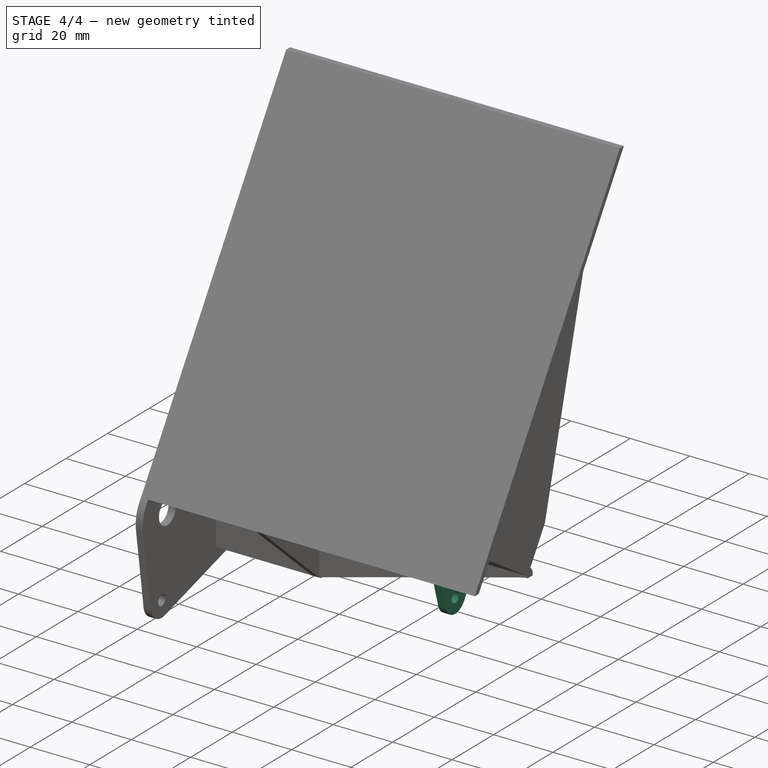
[diagram: stage 4 of 4 — iso view after this stage's code; geometry added in this stage tinted green]
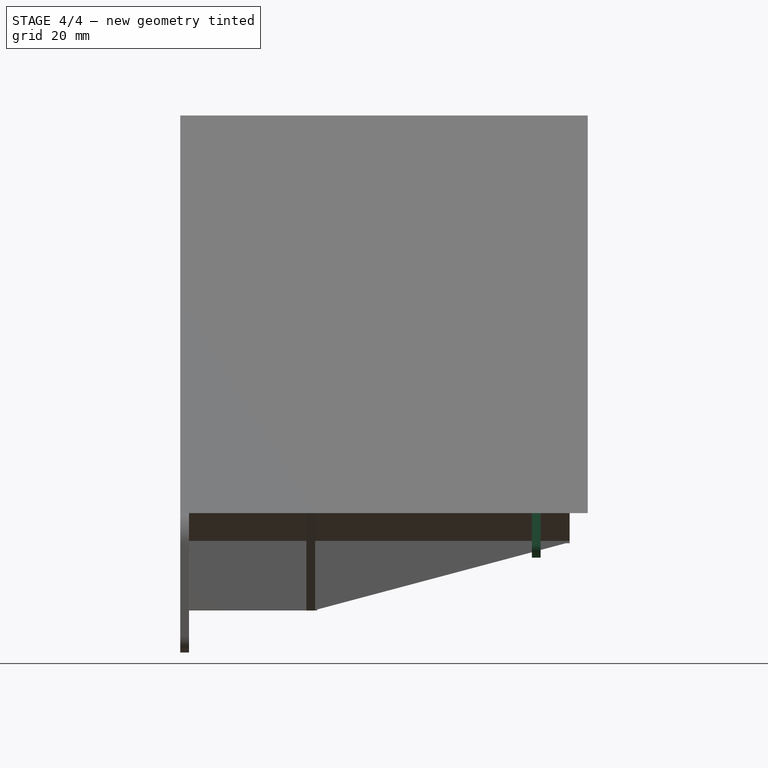
[diagram: stage 4 of 4 — front view after this stage's code; geometry added in this stage tinted green]
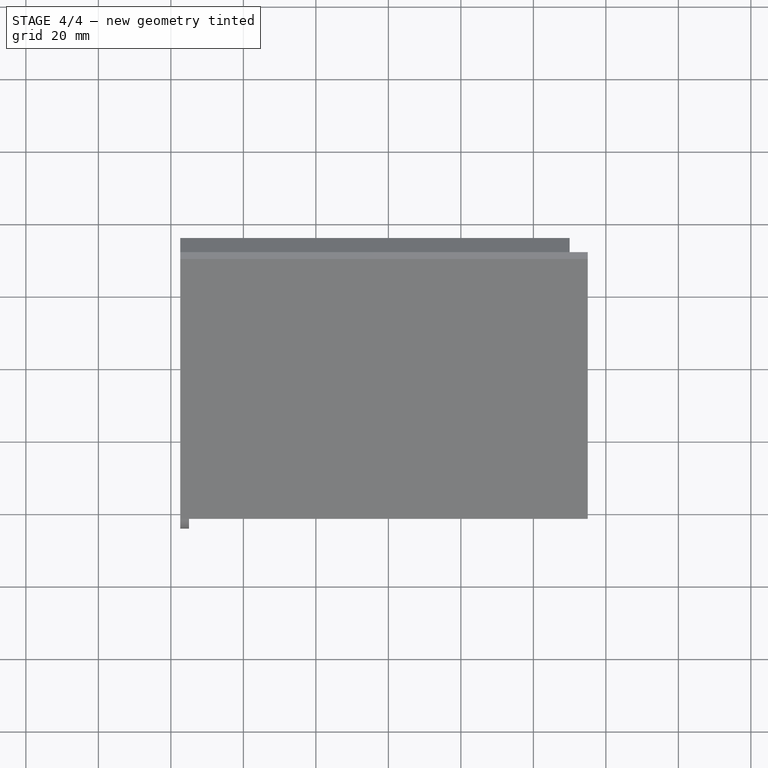
[diagram: stage 4 of 4 — top view after this stage's code; geometry added in this stage tinted green]
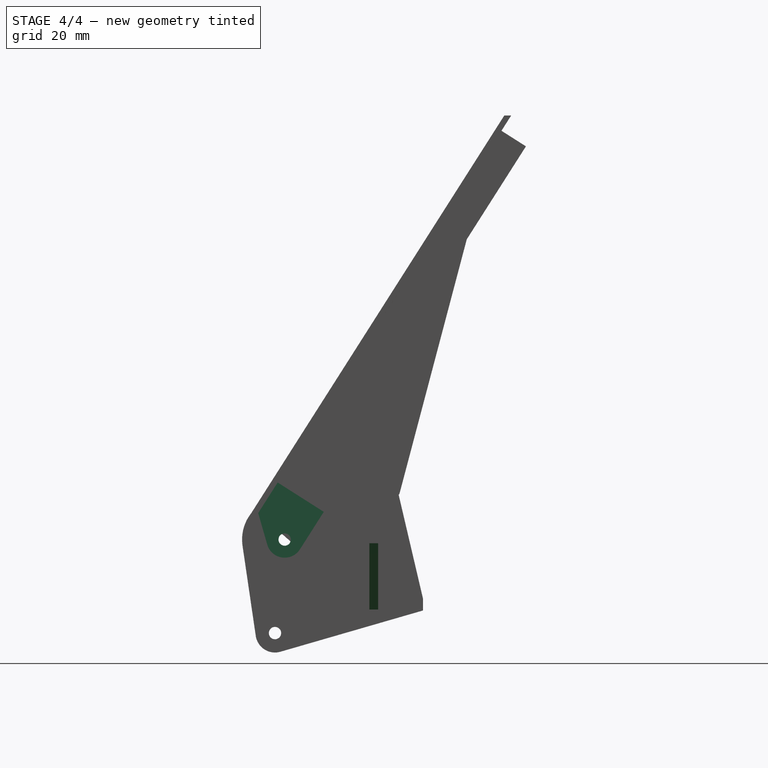
[diagram: stage 4 of 4 — right view after this stage's code; geometry added in this stage tinted green]
FEATURE [Sketcher::SketchObject] Sketch008
  FullyConstrained = false
  MapMode = 5
  Placement = pos=(0,0,0) rot=(1,0,0;1.5708rad)
  Support = -> [XZ_Plane]
  sketch-geometry (5):
    g0: LineSegment StartX=-19.6297 StartY=-26.5937 StartZ=0 EndX=48.8789 EndY=-8.34015 EndZ=0
    g1: LineSegment StartX=48.8789 StartY=-8.34015 StartZ=0 EndX=55.819 EndY=-8.34015 EndZ=0
    g2: LineSegment StartX=-19.6297 StartY=-26.5937 StartZ=0 EndX=-19.6297 EndY=-33.2053 EndZ=0
    g3: LineSegment StartX=-19.6297 StartY=-33.2053 StartZ=0 EndX=55.819 EndY=-33.2053 EndZ=0
    g4: LineSegment StartX=55.819 StartY=-33.2053 StartZ=0 EndX=55.819 EndY=-8.34015 EndZ=0
  constraints (9):
    c: Coincident(g1,g0)
    c: Horizontal(g1)
    c: Coincident(g2,g0)
    c: Vertical(g2)
    c: Coincident(g3,g2)
    c: Horizontal(g3)
    c: Coincident(g4,g3)
    c: Coincident(g4,g1)
    c: Vertical(g4)
FEATURE [PartDesign::Pocket] Pocket002
  BaseFeature = -> Pad005
  Length = 5
  Length2 = 100
  Profile = -> Sketch008
  Type = 1
FEATURE [Sketcher::SketchObject] Sketch009
  AttachmentOffset = pos=(0,0,42) rot=(0,0,1;0rad)
  FullyConstrained = true
  MapMode = 5
  Placement = pos=(42,-9.3e-15,9.3e-15) rot=(0.57735,0.57735,0.57735;2.0944rad)
  Support = -> [YZ_Plane]
  expr: .AttachmentOffset.Base.z = Spreadsheet.width / 2 - 13
  expr: Constraints[22] = 90 - Spreadsheet.inclination
  sketch-geometry (8):
    g0: Circle CenterX=7.30441 CenterY=-7.30441 CenterZ=0 NormalX=0 NormalY=0 NormalZ=1 AngleXU=0 Radius=1.7
    g1: LineSegment StartX=7.30441 StartY=-7.30441 StartZ=0 EndX=0 EndY=-7.30441 EndZ=0
    g2: LineSegment StartX=7.30441 StartY=-7.30441 StartZ=0 EndX=7.30441 EndY=0 EndZ=0
    g3: ArcOfCircle CenterX=7.30441 CenterY=-7.30441 CenterZ=0 NormalX=0 NormalY=0 NormalZ=1 AngleXU=0 Radius=5 StartAngle=3.42174 EndAngle=5.71648
    g4: LineSegment StartX=11.5228 StartY=-9.98868 StartZ=0 EndX=18.0945 EndY=0.33878 EndZ=0
    g5: LineSegment StartX=2.49933 StartY=-8.68688 StartZ=0 EndX=0 EndY=0 EndZ=0
    g6: LineSegment StartX=0 StartY=0 StartZ=0 EndX=5.36858 EndY=8.43673 EndZ=0
    g7: LineSegment StartX=5.36858 StartY=8.43673 StartZ=0 EndX=18.0945 EndY=0.33878 EndZ=0
  constraints (23):
    c: Distance(g0,g-1) = 10.33
    c: Coincident(g1,g0)
    c: PointOnObject(g1,g-2)
    c: Horizontal(g1)
    c: Coincident(g2,g0)
    c: PointOnObject(g2,g-1)
    c: Vertical(g2)
    c: Equal(g2,g1)
    c: Diameter(g0) = 3.4
    c: Coincident(g3,g0)
    c: Coincident(g4,g3)
    c: Tangent(g4,g3)
    c: Coincident(g5,g3)
    c: Coincident(g5,g-1)
    c: Tangent(g3,g5)
    c: Diameter(g3) = 10
    c: Coincident(g6,g5)
    c: Coincident(g7,g6)
    c: Coincident(g7,g4)
    c: Perpendicular(g6,g7)
    c: Distance(g6) = 10
    c: Perpendicular(g7,g4)
    c: Angle(g-1,g6) = 1.00409
FEATURE [PartDesign::Pad] Pad006
  BaseFeature = -> Pocket002
  Direction = (1,1,1)
  Length = 2.4
  Length2 = 100
  Profile = -> Sketch009
  Reversed = true
  Type = 0
FEATURE [Sketcher::SketchObject] Sketch010
  ExternalGeometry = -> [Pad006]
  FullyConstrained = true
  MapMode = 5
  Placement = pos=(6.6e-15,-5.3e-15,-23.669) rot=(0,0,1;0rad)
  Support = -> [Pad006]
  sketch-geometry (6):
    g0: LineSegment StartX=-55 StartY=45.4788 StartZ=0 EndX=-46.3 EndY=39.2788 EndZ=0
    g1: LineSegment StartX=-46.3 StartY=39.2788 StartZ=0 EndX=-55 EndY=33.0788 EndZ=0
    g2: LineSegment StartX=-22.6 StartY=45.4788 StartZ=0 EndX=-31.3 EndY=39.2788 EndZ=0
    g3: LineSegment StartX=-31.3 StartY=39.2788 StartZ=0 EndX=-22.6 EndY=33.0788 EndZ=0
    g4: Circle CenterX=-46.3 CenterY=39.2788 CenterZ=0 NormalX=0 NormalY=0 NormalZ=1 AngleXU=0 Radius=3.2
    g5: Circle CenterX=-31.3 CenterY=39.2788 CenterZ=0 NormalX=0 NormalY=0 NormalZ=1 AngleXU=0 Radius=3.2
  constraints (14):
    c: Coincident(g-4,g0)
    c: Coincident(g0,g1)
    c: Coincident(g1,g-4)
    c: Coincident(g-3,g2)
    c: Coincident(g2,g3)
    c: Coincident(g3,g-3)
    c: Equal(g3,g2)
    c: Equal(g2,g1)
    c: Equal(g1,g0)
    c: Coincident(g4,g0)
    c: Coincident(g5,g2)
    c: Equal(g4,g5)
    c: Diameter(g5) = 6.4
    c: Distance(g5,g4) = 15
FEATURE [PartDesign::Pocket] Pocket003
  BaseFeature = -> Pad006
  Length = 5
  Length2 = 100
  Profile = -> Sketch010
  Type = 0
FEATURE [PartDesign::Body] Body
  Group = -> [Sketch,Pad,DatumPlane,Sketch001,Pad001,Sketch002,Sketch003,Pad002,Sketch004,Pad003,Sketch005,Pad004,Sketch006,Pocket,Pocket001,Sketch007,Pad005,Sketch008,Pocket002,Sketch009,Pad006,Sketch010,Pocket003]
  Origin = -> Origin
  Tip = -> Pocket003
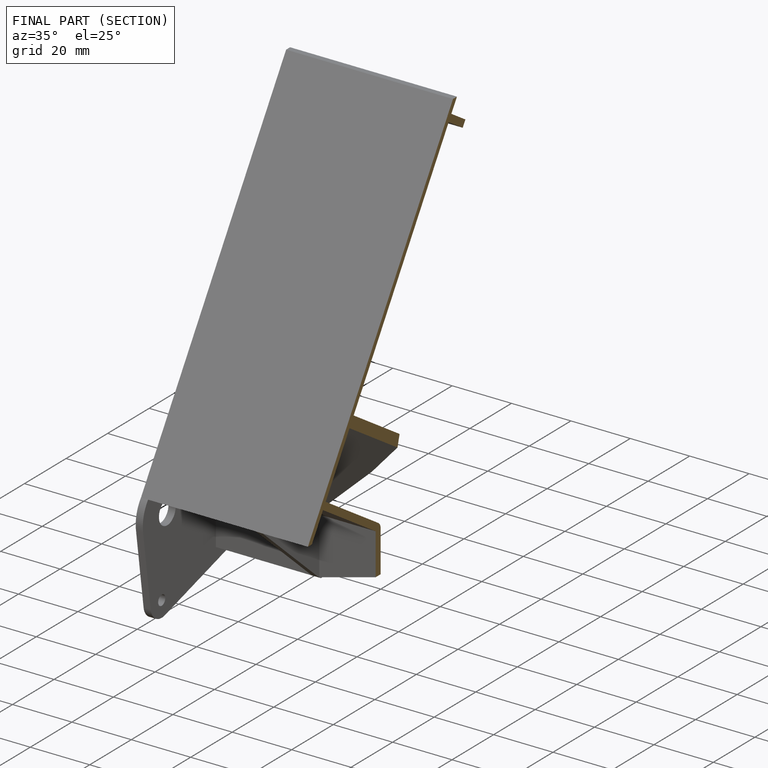
[diagram: finished part — half-section view (interior)]
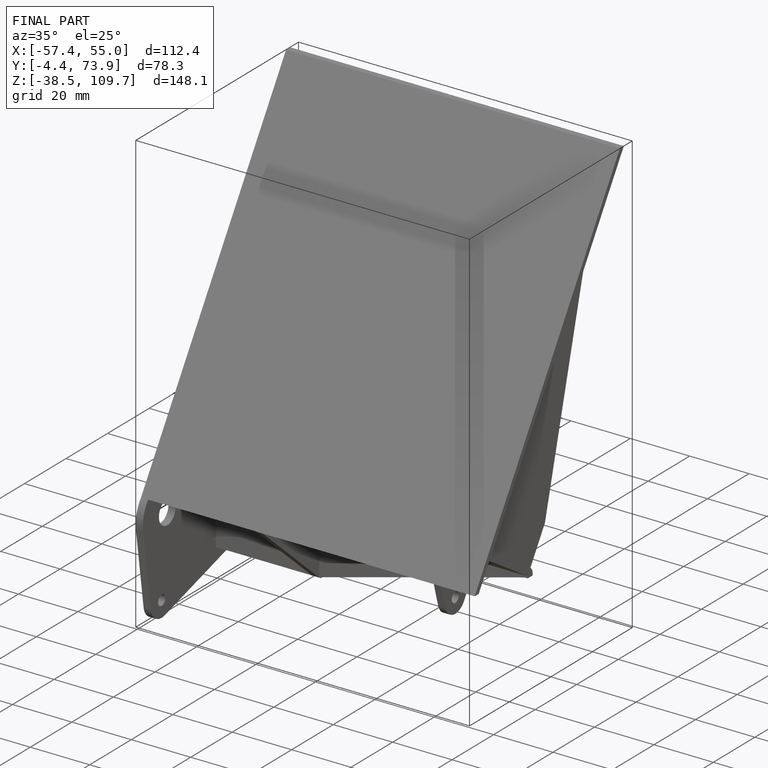
[diagram: finished part — iso view with bounding-box wireframe]
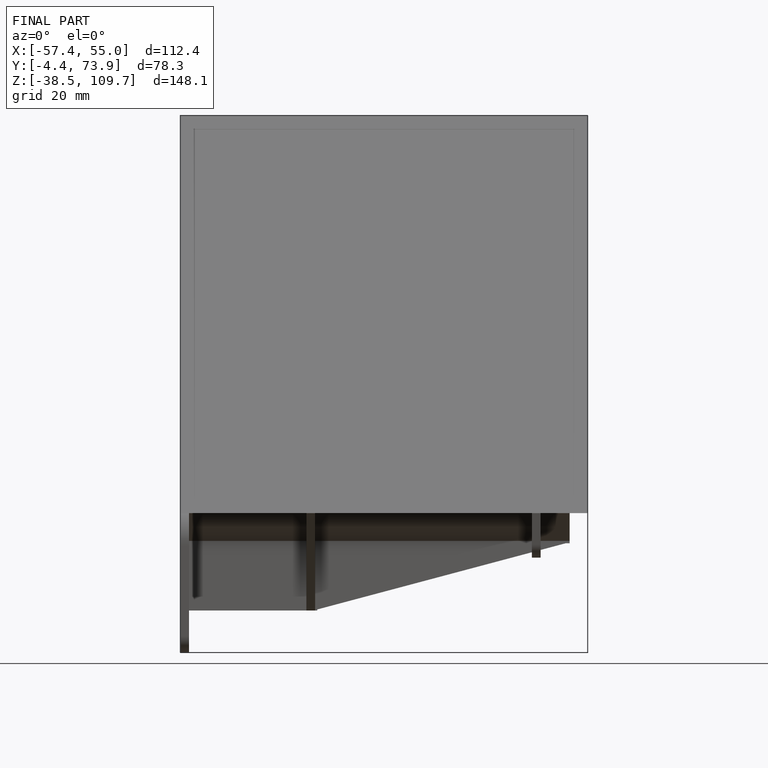
[diagram: finished part — front view with bounding-box wireframe]
